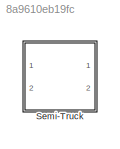
MODEL slx_8a9610eb19fc
KIND model
CONFIG AbsTol = auto
CONFIG EnableMultiTasking = off
CONFIG FixedStep = auto
CONFIG MaxStep = 0.01
CONFIG MinStep = auto
CONFIG RelTol = 1e-3
CONFIG SampleTimeConstraint = Unconstrained
CONFIG Solver = VariableStepAuto
CONFIG SolverName = VariableStepAuto
CONFIG StartTime = 0.0
CONFIG StopTime = 50
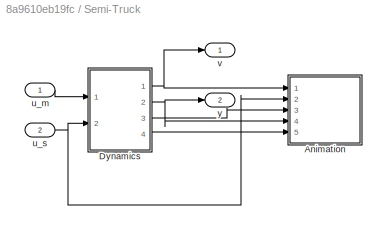
BLOCK [SubSystem] Semi-Truck
  Ports = [2, 2]
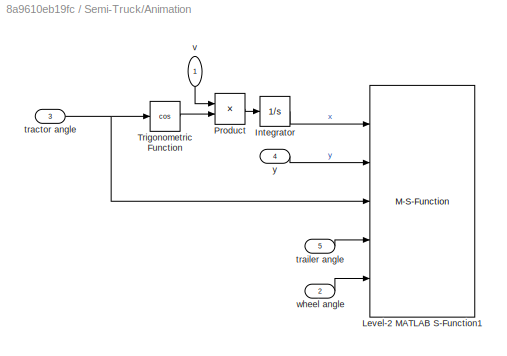
BLOCK [SubSystem] Semi-Truck/Animation
  Ports = [5]
BLOCK [Integrator] Semi-Truck/Animation/Integrator
  Ports = [1, 1]
BLOCK [M-S-Function] Semi-Truck/Animation/Level-2 MATLAB S-Function1
  FunctionName = semiTruckSFunction
  Ports = [5]
BLOCK [Product] Semi-Truck/Animation/Product
  Ports = [2, 1]
BLOCK [Trigonometry] Semi-Truck/Animation/Trigonometric Function
  Operator = cos
  Ports = [1, 1]
BLOCK [Inport] Semi-Truck/Animation/tractor angle
  Port = 3
BLOCK [Inport] Semi-Truck/Animation/trailer angle
  Port = 5
BLOCK [Inport] Semi-Truck/Animation/v
BLOCK [Inport] Semi-Truck/Animation/wheel angle
  Port = 2
BLOCK [Inport] Semi-Truck/Animation/y
  Port = 4
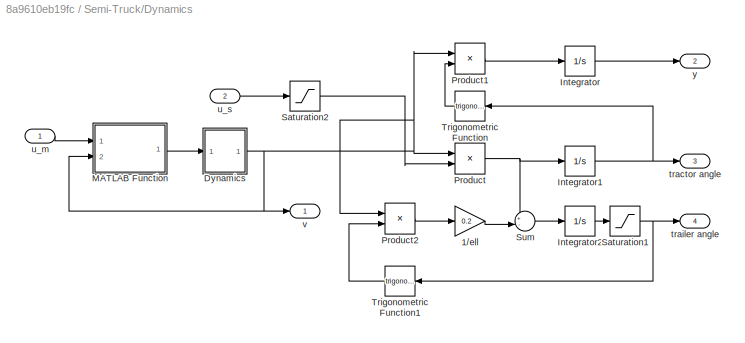
BLOCK [SubSystem] Semi-Truck/Dynamics
  ClipboardFcn = parameters_truck.m
  Ports = [2, 4]
BLOCK [Gain] Semi-Truck/Dynamics/1//ell
  Gain = 0.2
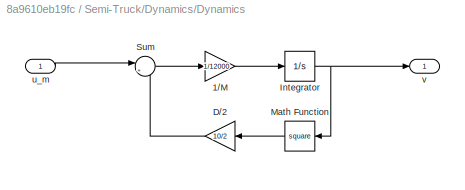
BLOCK [SubSystem] Semi-Truck/Dynamics/Dynamics
  ClipboardFcn = parameters_truck.m
  Ports = [1, 1]
BLOCK [Gain] Semi-Truck/Dynamics/Dynamics/1//M
  Gain = 1/12000
BLOCK [Gain] Semi-Truck/Dynamics/Dynamics/D//2
  Gain = 10/2
BLOCK [Integrator] Semi-Truck/Dynamics/Dynamics/Integrator
  Ports = [1, 1]
BLOCK [Math] Semi-Truck/Dynamics/Dynamics/Math Function
  Operator = square
  Ports = [1, 1]
BLOCK [Sum] Semi-Truck/Dynamics/Dynamics/Sum
  Inputs = |+-
  Ports = [2, 1]
BLOCK [Inport] Semi-Truck/Dynamics/Dynamics/u_m
BLOCK [Outport] Semi-Truck/Dynamics/Dynamics/v
BLOCK [Integrator] Semi-Truck/Dynamics/Integrator
  InitialCondition = -2
  Ports = [1, 1]
BLOCK [Integrator] Semi-Truck/Dynamics/Integrator1
  Ports = [1, 1]
BLOCK [Integrator] Semi-Truck/Dynamics/Integrator2
  Ports = [1, 1]
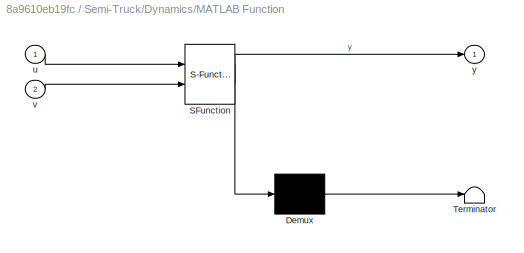
BLOCK [SubSystem] Semi-Truck/Dynamics/MATLAB Function
  ErrorFcn = Stateflow.Translate.translate
  PermitHierarchicalResolution = ExplicitOnly
  Ports = [2, 1]
  SFBlockType = MATLAB Function
  TreatAsAtomicUnit = on
BLOCK [Demux] Semi-Truck/Dynamics/MATLAB Function/ Demux 
  Outputs = 1
  Ports = [1, 1]
BLOCK [S-Function] Semi-Truck/Dynamics/MATLAB Function/ SFunction 
  EnableBusSupport = on
  FunctionName = sf_sfun
  PortCounts = [2 2]
  Ports = [2, 2]
  SFcnIsStateOwnerBlock = off
  SFunctionDeploymentMode = off
  Tag = Stateflow S-Function 1
BLOCK [Terminator] Semi-Truck/Dynamics/MATLAB Function/ Terminator 
BLOCK [Inport] Semi-Truck/Dynamics/MATLAB Function/u
BLOCK [Inport] Semi-Truck/Dynamics/MATLAB Function/v
  Port = 2
BLOCK [Outport] Semi-Truck/Dynamics/MATLAB Function/y
BLOCK [Product] Semi-Truck/Dynamics/Product
  Ports = [2, 1]
BLOCK [Product] Semi-Truck/Dynamics/Product1
  Ports = [2, 1]
BLOCK [Product] Semi-Truck/Dynamics/Product2
  Ports = [2, 1]
BLOCK [Saturate] Semi-Truck/Dynamics/Saturation1
  LowerLimit = -pi/2
  UpperLimit = pi/2
BLOCK [Saturate] Semi-Truck/Dynamics/Saturation2
  LowerLimit = -pi/2
  UpperLimit = pi/2
BLOCK [Sum] Semi-Truck/Dynamics/Sum
  Inputs = +-|
  Ports = [2, 1]
BLOCK [Trigonometry] Semi-Truck/Dynamics/Trigonometric Function
  Ports = [1, 1]
BLOCK [Trigonometry] Semi-Truck/Dynamics/Trigonometric Function1
  Ports = [1, 1]
BLOCK [Outport] Semi-Truck/Dynamics/tractor angle
  Port = 3
BLOCK [Outport] Semi-Truck/Dynamics/trailer angle
  Port = 4
BLOCK [Inport] Semi-Truck/Dynamics/u_m
BLOCK [Inport] Semi-Truck/Dynamics/u_s
  Port = 2
BLOCK [Outport] Semi-Truck/Dynamics/v
BLOCK [Outport] Semi-Truck/Dynamics/y
  Port = 2
BLOCK [Inport] Semi-Truck/u_m
BLOCK [Inport] Semi-Truck/u_s
  Port = 2
BLOCK [Outport] Semi-Truck/v
BLOCK [Outport] Semi-Truck/y
  Port = 2
LINE Semi-Truck/Animation/Integrator:1 -> Semi-Truck/Animation/Level-2 MATLAB S-Function1:1
LINE Semi-Truck/Animation/Product:1 -> Semi-Truck/Animation/Integrator:1
LINE Semi-Truck/Animation/Trigonometric Function:1 -> Semi-Truck/Animation/Product:2
NET Semi-Truck/Animation/tractor angle:1 -> Semi-Truck/Animation/Level-2 MATLAB S-Function1:3, Semi-Truck/Animation/Trigonometric Function:1
LINE Semi-Truck/Animation/trailer angle:1 -> Semi-Truck/Animation/Level-2 MATLAB S-Function1:4
LINE Semi-Truck/Animation/v:1 -> Semi-Truck/Animation/Product:1
LINE Semi-Truck/Animation/wheel angle:1 -> Semi-Truck/Animation/Level-2 MATLAB S-Function1:5
LINE Semi-Truck/Animation/y:1 -> Semi-Truck/Animation/Level-2 MATLAB S-Function1:2
LINE Semi-Truck/Dynamics/1//ell:1 -> Semi-Truck/Dynamics/Sum:2
LINE Semi-Truck/Dynamics/Dynamics/1//M:1 -> Semi-Truck/Dynamics/Dynamics/Integrator:1
LINE Semi-Truck/Dynamics/Dynamics/D//2:1 -> Semi-Truck/Dynamics/Dynamics/Sum:2
NET Semi-Truck/Dynamics/Dynamics/Integrator:1 -> Semi-Truck/Dynamics/Dynamics/Math Function:1, Semi-Truck/Dynamics/Dynamics/v:1
LINE Semi-Truck/Dynamics/Dynamics/Math Function:1 -> Semi-Truck/Dynamics/Dynamics/D//2:1
LINE Semi-Truck/Dynamics/Dynamics/Sum:1 -> Semi-Truck/Dynamics/Dynamics/1//M:1
LINE Semi-Truck/Dynamics/Dynamics/u_m:1 -> Semi-Truck/Dynamics/Dynamics/Sum:1
NET Semi-Truck/Dynamics/Dynamics:1 -> Semi-Truck/Dynamics/MATLAB Function:2, Semi-Truck/Dynamics/Product1:1, Semi-Truck/Dynamics/Product2:1, Semi-Truck/Dynamics/Product:1, Semi-Truck/Dynamics/v:1
NET Semi-Truck/Dynamics/Integrator1:1 -> Semi-Truck/Dynamics/Trigonometric Function:1, Semi-Truck/Dynamics/tractor angle:1
LINE Semi-Truck/Dynamics/Integrator2:1 -> Semi-Truck/Dynamics/Saturation1:1
LINE Semi-Truck/Dynamics/Integrator:1 -> Semi-Truck/Dynamics/y:1
LINE Semi-Truck/Dynamics/MATLAB Function:1 -> Semi-Truck/Dynamics/Dynamics:1
LINE Semi-Truck/Dynamics/Product1:1 -> Semi-Truck/Dynamics/Integrator:1
LINE Semi-Truck/Dynamics/Product2:1 -> Semi-Truck/Dynamics/1//ell:1
NET Semi-Truck/Dynamics/Product:1 -> Semi-Truck/Dynamics/Integrator1:1, Semi-Truck/Dynamics/Sum:1
NET Semi-Truck/Dynamics/Saturation1:1 -> Semi-Truck/Dynamics/Trigonometric Function1:1, Semi-Truck/Dynamics/trailer angle:1
LINE Semi-Truck/Dynamics/Saturation2:1 -> Semi-Truck/Dynamics/Product:2
LINE Semi-Truck/Dynamics/Sum:1 -> Semi-Truck/Dynamics/Integrator2:1
LINE Semi-Truck/Dynamics/Trigonometric Function1:1 -> Semi-Truck/Dynamics/Product2:2
LINE Semi-Truck/Dynamics/Trigonometric Function:1 -> Semi-Truck/Dynamics/Product1:2
LINE Semi-Truck/Dynamics/u_m:1 -> Semi-Truck/Dynamics/MATLAB Function:1
LINE Semi-Truck/Dynamics/u_s:1 -> Semi-Truck/Dynamics/Saturation2:1
NET Semi-Truck/Dynamics:1 -> Semi-Truck/Animation:1, Semi-Truck/v:1
NET Semi-Truck/Dynamics:2 -> Semi-Truck/Animation:4, Semi-Truck/y:1
LINE Semi-Truck/Dynamics:3 -> Semi-Truck/Animation:3
LINE Semi-Truck/Dynamics:4 -> Semi-Truck/Animation:5
LINE Semi-Truck/u_m:1 -> Semi-Truck/Dynamics:1
NET Semi-Truck/u_s:1 -> Semi-Truck/Animation:2, Semi-Truck/Dynamics:2
note: NET lines group one-source signal fan-out (src -> all destinations, sorted); 1:1 wires keep LINE
CHART Semi-Truck/Dynamics/MATLAB Function states=1 transitions=1
  STATE_LABEL 'eML_blk_kernel()'
  STATE_LABEL 'SCRIPT:\nfunction y = saturation(u,v)\n    Pmax = 400000;\n    epsilon = 0.1;\n    \n    sat = Pmax/sqrt(v^2+epsilon);\n    y = max(min(u,sat),-sat);\n'
